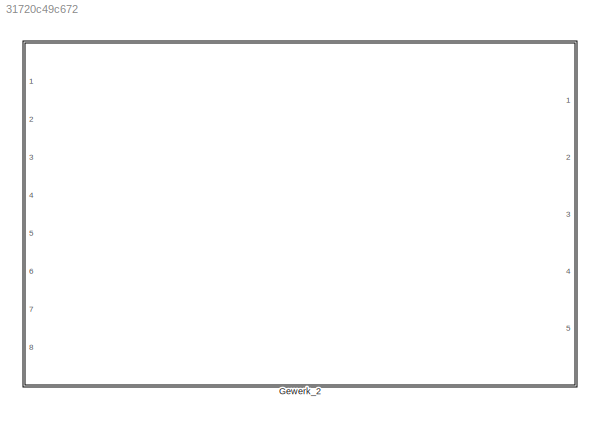
MODEL slx_31720c49c672
KIND model
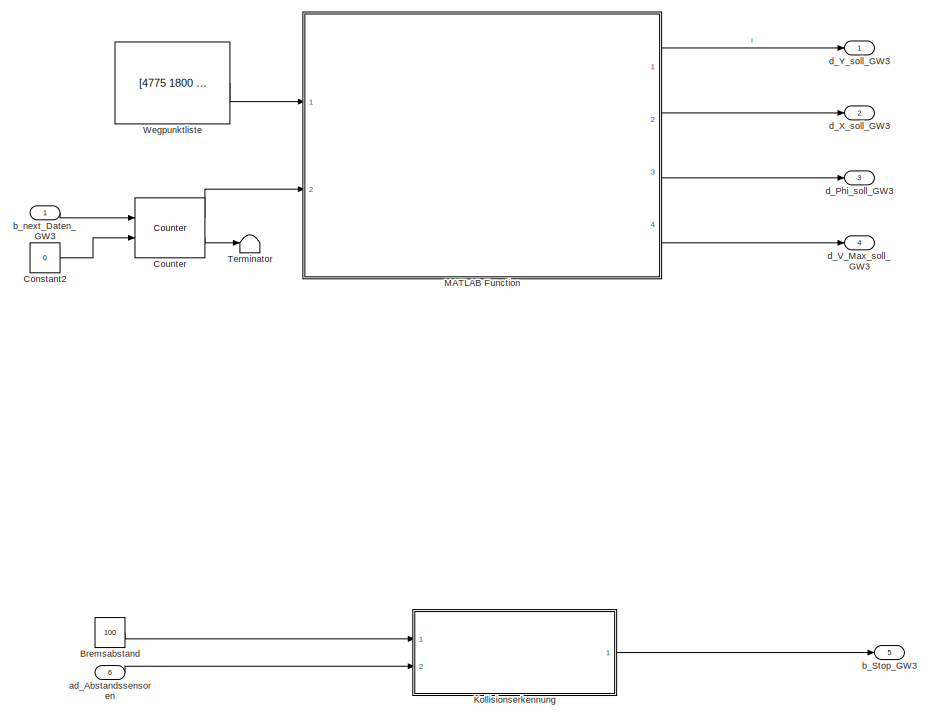
[diagram: Gewerk_2 - part 1/2, right side, full height]
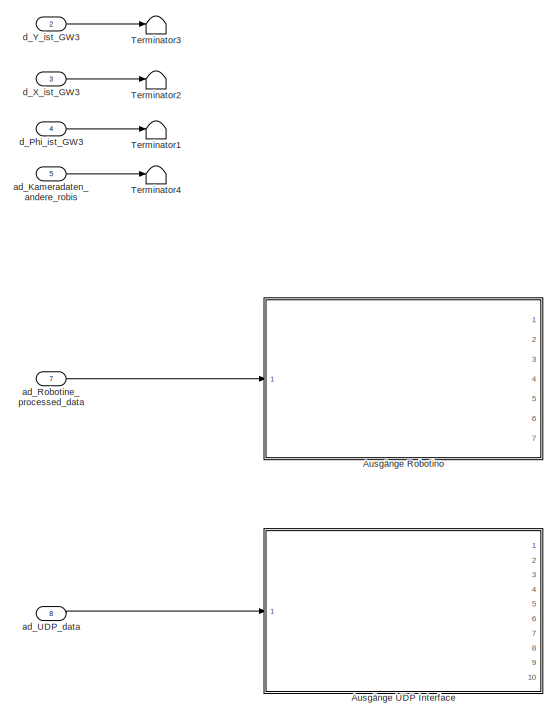
[diagram: Gewerk_2 - part 2/2, left side, full height]
BLOCK [SubSystem] Gewerk_2
  Ports = [8, 5]
  RequestExecContextInheritance = off
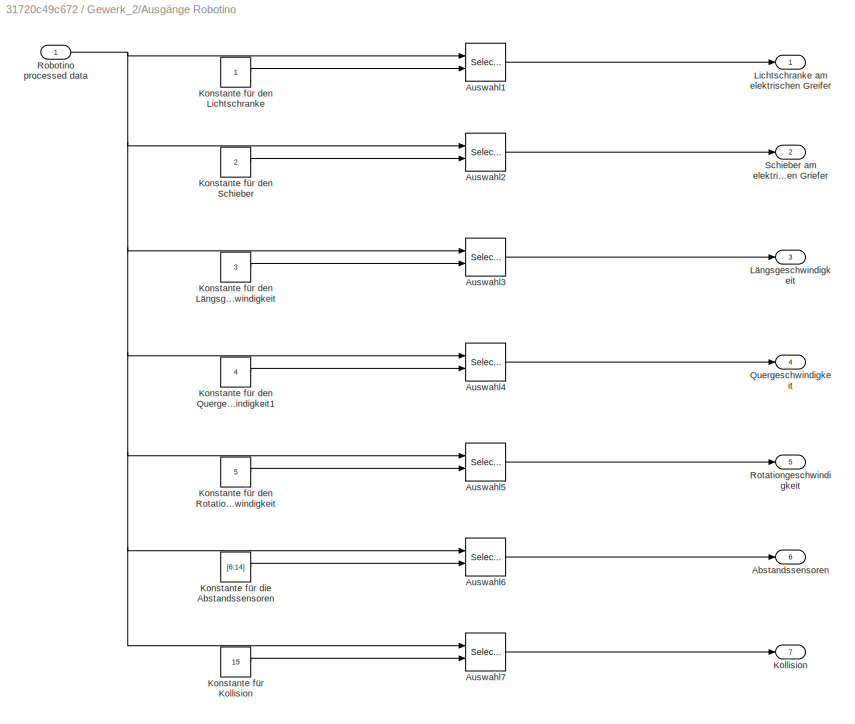
BLOCK [SubSystem] Gewerk_2/Ausgänge Robotino
  Ports = [1, 7]
  RequestExecContextInheritance = off
BLOCK [Outport] Gewerk_2/Ausgänge Robotino/Abstandssensoren
  IconDisplay = Port number
  Port = 6
BLOCK [Selector] Gewerk_2/Ausgänge Robotino/Auswahl1
  IndexOptions = Index vector (port)
  Indices = [1 3]
  InputPortWidth = 15
  Ports = [2, 1]
BLOCK [Selector] Gewerk_2/Ausgänge Robotino/Auswahl2
  IndexOptions = Index vector (port)
  Indices = [1 3]
  InputPortWidth = 15
  Ports = [2, 1]
BLOCK [Selector] Gewerk_2/Ausgänge Robotino/Auswahl3
  IndexOptions = Index vector (port)
  Indices = [1 3]
  InputPortWidth = 15
  Ports = [2, 1]
BLOCK [Selector] Gewerk_2/Ausgänge Robotino/Auswahl4
  IndexOptions = Index vector (port)
  Indices = [1 3]
  InputPortWidth = 15
  Ports = [2, 1]
BLOCK [Selector] Gewerk_2/Ausgänge Robotino/Auswahl5
  IndexOptions = Index vector (port)
  Indices = [1 3]
  InputPortWidth = 15
  Ports = [2, 1]
BLOCK [Selector] Gewerk_2/Ausgänge Robotino/Auswahl6
  IndexOptions = Index vector (port)
  Indices = [1 3]
  InputPortWidth = 15
  Ports = [2, 1]
BLOCK [Selector] Gewerk_2/Ausgänge Robotino/Auswahl7
  IndexOptions = Index vector (port)
  Indices = [1 3]
  InputPortWidth = 15
  Ports = [2, 1]
BLOCK [Outport] Gewerk_2/Ausgänge Robotino/Kollision
  IconDisplay = Port number
  Port = 7
BLOCK [Constant] Gewerk_2/Ausgänge Robotino/Konstante für Kollision 
  Value = 15
BLOCK [Constant] Gewerk_2/Ausgänge Robotino/Konstante für den Lichtschranke
BLOCK [Constant] Gewerk_2/Ausgänge Robotino/Konstante für den Längsgeschwindigkeit
  Value = 3
BLOCK [Constant] Gewerk_2/Ausgänge Robotino/Konstante für den Quergeschwindigkeit1
  Value = 4
BLOCK [Constant] Gewerk_2/Ausgänge Robotino/Konstante für den Rotationegeschwindigkeit
  Value = 5
BLOCK [Constant] Gewerk_2/Ausgänge Robotino/Konstante für den Schieber
  Value = 2
BLOCK [Constant] Gewerk_2/Ausgänge Robotino/Konstante für die Abstandssensoren
  Value = [6:14]
BLOCK [Outport] Gewerk_2/Ausgänge Robotino/Lichtschranke am elektrischen Greifer
  IconDisplay = Port number
BLOCK [Outport] Gewerk_2/Ausgänge Robotino/Längsgeschwindigkeit 
  IconDisplay = Port number
  Port = 3
BLOCK [Outport] Gewerk_2/Ausgänge Robotino/Quergeschwindigkeit
  IconDisplay = Port number
  Port = 4
BLOCK [Inport] Gewerk_2/Ausgänge Robotino/Robotino processed data
  IconDisplay = Port number
BLOCK [Outport] Gewerk_2/Ausgänge Robotino/Rotationgeschwindigkeit 
  IconDisplay = Port number
  Port = 5
BLOCK [Outport] Gewerk_2/Ausgänge Robotino/Schieber am elektrischen Griefer 
  IconDisplay = Port number
  Port = 2
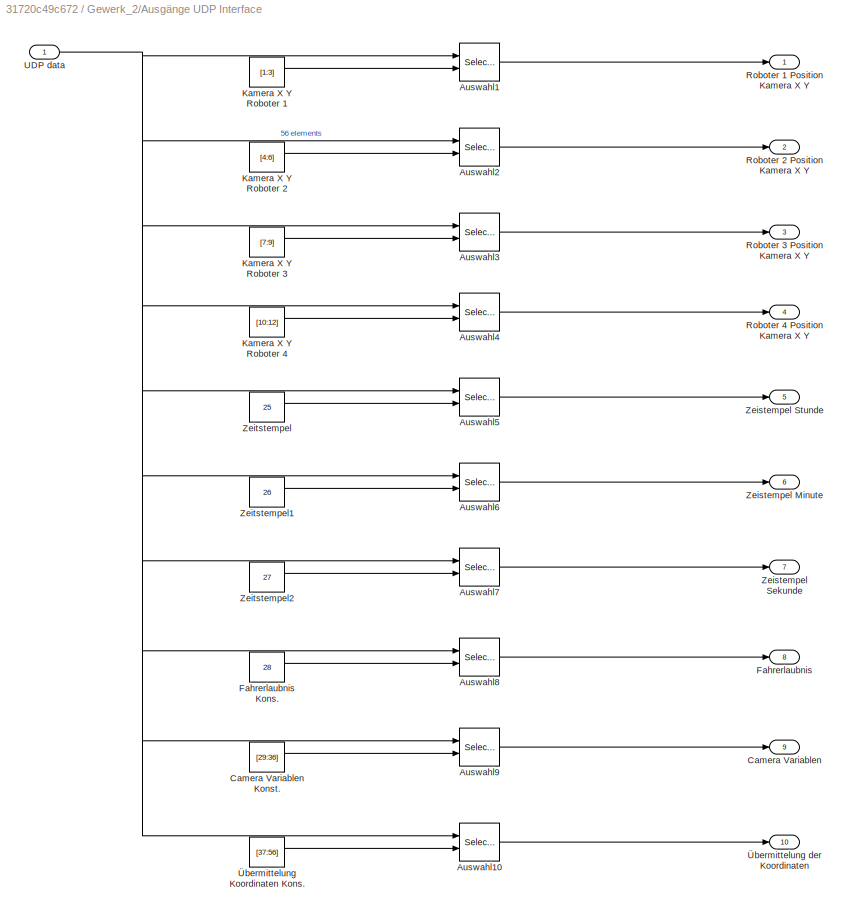
BLOCK [SubSystem] Gewerk_2/Ausgänge UDP Interface
  Ports = [1, 10]
  RequestExecContextInheritance = off
BLOCK [Selector] Gewerk_2/Ausgänge UDP Interface/Auswahl1
  IndexOptions = Index vector (port)
  Indices = [1 3]
  InputPortWidth = 15
  Ports = [2, 1]
BLOCK [Selector] Gewerk_2/Ausgänge UDP Interface/Auswahl10
  IndexOptions = Index vector (port)
  Indices = [1 3]
  InputPortWidth = 15
  Ports = [2, 1]
BLOCK [Selector] Gewerk_2/Ausgänge UDP Interface/Auswahl2
  IndexOptions = Index vector (port)
  Indices = [1 3]
  InputPortWidth = 15
  Ports = [2, 1]
BLOCK [Selector] Gewerk_2/Ausgänge UDP Interface/Auswahl3
  IndexOptions = Index vector (port)
  Indices = [1 3]
  InputPortWidth = 15
  Ports = [2, 1]
BLOCK [Selector] Gewerk_2/Ausgänge UDP Interface/Auswahl4
  IndexOptions = Index vector (port)
  Indices = [1 3]
  InputPortWidth = 15
  Ports = [2, 1]
BLOCK [Selector] Gewerk_2/Ausgänge UDP Interface/Auswahl5
  IndexOptions = Index vector (port)
  Indices = [1 3]
  InputPortWidth = 15
  Ports = [2, 1]
BLOCK [Selector] Gewerk_2/Ausgänge UDP Interface/Auswahl6
  IndexOptions = Index vector (port)
  Indices = [1 3]
  InputPortWidth = 15
  Ports = [2, 1]
BLOCK [Selector] Gewerk_2/Ausgänge UDP Interface/Auswahl7
  IndexOptions = Index vector (port)
  Indices = [1 3]
  InputPortWidth = 15
  Ports = [2, 1]
BLOCK [Selector] Gewerk_2/Ausgänge UDP Interface/Auswahl8
  IndexOptions = Index vector (port)
  Indices = [1 3]
  InputPortWidth = 15
  Ports = [2, 1]
BLOCK [Selector] Gewerk_2/Ausgänge UDP Interface/Auswahl9
  IndexOptions = Index vector (port)
  Indices = [1 3]
  InputPortWidth = 15
  Ports = [2, 1]
BLOCK [Outport] Gewerk_2/Ausgänge UDP Interface/Camera Variablen
  IconDisplay = Port number
  Port = 9
BLOCK [Constant] Gewerk_2/Ausgänge UDP Interface/Camera Variablen Konst.
  Value = [29:36]
BLOCK [Outport] Gewerk_2/Ausgänge UDP Interface/Fahrerlaubnis
  IconDisplay = Port number
  Port = 8
BLOCK [Constant] Gewerk_2/Ausgänge UDP Interface/Fahrerlaubnis Kons.
  Value = 28
BLOCK [Constant] Gewerk_2/Ausgänge UDP Interface/Kamera X Y Roboter 1
  Value = [1:3]
BLOCK [Constant] Gewerk_2/Ausgänge UDP Interface/Kamera X Y Roboter 2
  Value = [4:6]
BLOCK [Constant] Gewerk_2/Ausgänge UDP Interface/Kamera X Y Roboter 3
  Value = [7:9]
BLOCK [Constant] Gewerk_2/Ausgänge UDP Interface/Kamera X Y Roboter 4
  Value = [10:12]
BLOCK [Outport] Gewerk_2/Ausgänge UDP Interface/Roboter 1 Position Kamera X Y
  IconDisplay = Port number
BLOCK [Outport] Gewerk_2/Ausgänge UDP Interface/Roboter 2 Position Kamera X Y
  IconDisplay = Port number
  Port = 2
BLOCK [Outport] Gewerk_2/Ausgänge UDP Interface/Roboter 3 Position Kamera X Y
  IconDisplay = Port number
  Port = 3
BLOCK [Outport] Gewerk_2/Ausgänge UDP Interface/Roboter 4 Position Kamera X Y
  IconDisplay = Port number
  Port = 4
BLOCK [Inport] Gewerk_2/Ausgänge UDP Interface/UDP data
  IconDisplay = Port number
BLOCK [Outport] Gewerk_2/Ausgänge UDP Interface/Zeistempel Minute
  IconDisplay = Port number
  Port = 6
BLOCK [Outport] Gewerk_2/Ausgänge UDP Interface/Zeistempel Sekunde
  IconDisplay = Port number
  Port = 7
BLOCK [Outport] Gewerk_2/Ausgänge UDP Interface/Zeistempel Stunde
  IconDisplay = Port number
  Port = 5
BLOCK [Constant] Gewerk_2/Ausgänge UDP Interface/Zeitstempel
  Value = 25
BLOCK [Constant] Gewerk_2/Ausgänge UDP Interface/Zeitstempel1
  Value = 26
BLOCK [Constant] Gewerk_2/Ausgänge UDP Interface/Zeitstempel2
  Value = 27
BLOCK [Constant] Gewerk_2/Ausgänge UDP Interface/Übermittelung Koordinaten Kons.
  Value = [37:56]
BLOCK [Outport] Gewerk_2/Ausgänge UDP Interface/Übermittelung der Koordinaten
  IconDisplay = Port number
  Port = 10
BLOCK [Constant] Gewerk_2/Bremsabstand
  OutDataTypeStr = double
  Value = 100
BLOCK [Constant] Gewerk_2/Constant2
  Value = 0
BLOCK [Reference] Gewerk_2/Counter  REF=dspswit3/Counter
  CntDtype = int32
  CountEvent = Rising edge
  CounterSize = User defined
  Direction = Up
  HitDtype = Logical
  HitValue = 16
  InitialCount = 0
  MaxCount = 16
  Output = Count and Hit
  Ports = [2, 2]
  ResetInput = on
  SamplesPerFrame = 1
  SourceBlock = dspswit3/Counter
  SourceType = Counter
  Ts = 1
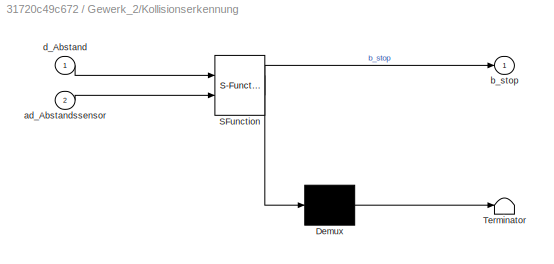
BLOCK [SubSystem] Gewerk_2/Kollisionserkennung
  ErrorFcn = Stateflow.Translate.translate
  PermitHierarchicalResolution = ExplicitOnly
  Ports = [2, 1]
  RequestExecContextInheritance = off
  SFBlockType = MATLAB Function
  TreatAsAtomicUnit = on
BLOCK [Demux] Gewerk_2/Kollisionserkennung/ Demux 
  Outputs = 1
  Ports = [1, 1]
BLOCK [S-Function] Gewerk_2/Kollisionserkennung/ SFunction 
  EnableBusSupport = on
  FunctionName = sf_sfun
  PortCounts = [2 2]
  Ports = [2, 2]
  Tag = Stateflow S-Function Gewerk_2_v0_2 1
BLOCK [Terminator] Gewerk_2/Kollisionserkennung/ Terminator 
BLOCK [Inport] Gewerk_2/Kollisionserkennung/ad_Abstandssensor
  IconDisplay = Port number
  Port = 2
BLOCK [Outport] Gewerk_2/Kollisionserkennung/b_stop
  IconDisplay = Port number
BLOCK [Inport] Gewerk_2/Kollisionserkennung/d_Abstand
  IconDisplay = Port number
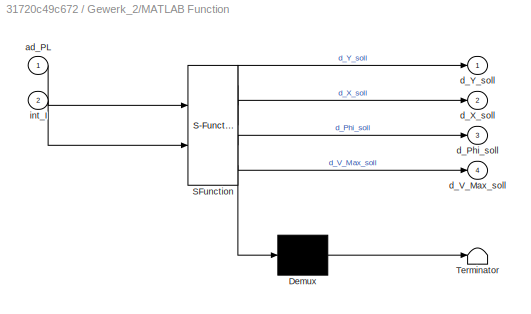
BLOCK [SubSystem] Gewerk_2/MATLAB Function
  ErrorFcn = Stateflow.Translate.translate
  PermitHierarchicalResolution = ExplicitOnly
  Ports = [2, 4]
  RequestExecContextInheritance = off
  SFBlockType = MATLAB Function
  TreatAsAtomicUnit = on
BLOCK [Demux] Gewerk_2/MATLAB Function/ Demux 
  Outputs = 1
  Ports = [1, 1]
BLOCK [S-Function] Gewerk_2/MATLAB Function/ SFunction 
  EnableBusSupport = on
  FunctionName = sf_sfun
  PortCounts = [2 5]
  Ports = [2, 5]
  Tag = Stateflow S-Function Gewerk_2_v0_2 2
BLOCK [Terminator] Gewerk_2/MATLAB Function/ Terminator 
BLOCK [Inport] Gewerk_2/MATLAB Function/ad_PL
  IconDisplay = Port number
BLOCK [Outport] Gewerk_2/MATLAB Function/d_Phi_soll
  IconDisplay = Port number
  Port = 3
BLOCK [Outport] Gewerk_2/MATLAB Function/d_V_Max_soll
  IconDisplay = Port number
  Port = 4
BLOCK [Outport] Gewerk_2/MATLAB Function/d_X_soll
  IconDisplay = Port number
  Port = 2
BLOCK [Outport] Gewerk_2/MATLAB Function/d_Y_soll
  IconDisplay = Port number
BLOCK [Inport] Gewerk_2/MATLAB Function/int_I
  IconDisplay = Port number
  Port = 2
BLOCK [Terminator] Gewerk_2/Terminator
BLOCK [Terminator] Gewerk_2/Terminator1
BLOCK [Terminator] Gewerk_2/Terminator2
BLOCK [Terminator] Gewerk_2/Terminator3
BLOCK [Terminator] Gewerk_2/Terminator4
BLOCK [Constant] Gewerk_2/Wegpunktliste
  OutDataTypeStr = double
  Value = [4775 1800 180 300 ; 3745 1800 180 300; 2540 2100 180 300; 2160 2100 180 300; 1678 1894 180 300; 1373 1846 180 300; 1155 1627 180 300; 1106 1321 180 300; 1246 1046 180 300; 1522 906 180 300; 1827 954 180 300; 2300 954 180 300; 2800 1500 180 300; 3300 1000 180 300; 3800 1500 180 300; 4300 1000 180 300; 4800 1500 180 300 ]
BLOCK [Inport] Gewerk_2/ad_Abstandssensoren
  IconDisplay = Port number
  OutDataTypeStr = double
  Port = 6
  PortDimensions = 9
  VarSizeSig = No
BLOCK [Inport] Gewerk_2/ad_Kameradaten_andere_robis
  IconDisplay = Port number
  OutDataTypeStr = double
  Port = 5
BLOCK [Inport] Gewerk_2/ad_Robotine_processed_data
  IconDisplay = Port number
  OutDataTypeStr = double
  Port = 7
BLOCK [Inport] Gewerk_2/ad_UDP_data
  IconDisplay = Port number
  OutDataTypeStr = double
  Port = 8
BLOCK [Outport] Gewerk_2/b_Stop_GW3
  IconDisplay = Port number
  OutDataTypeStr = boolean
  Port = 5
BLOCK [Inport] Gewerk_2/b_next_Daten_GW3
  IconDisplay = Port number
  OutDataTypeStr = boolean
BLOCK [Inport] Gewerk_2/d_Phi_ist_GW3
  IconDisplay = Port number
  OutDataTypeStr = double
  Port = 4
BLOCK [Outport] Gewerk_2/d_Phi_soll_GW3
  IconDisplay = Port number
  OutDataTypeStr = double
  Port = 3
BLOCK [Outport] Gewerk_2/d_V_Max_soll_GW3
  IconDisplay = Port number
  OutDataTypeStr = double
  Port = 4
BLOCK [Inport] Gewerk_2/d_X_ist_GW3
  IconDisplay = Port number
  OutDataTypeStr = double
  Port = 3
BLOCK [Outport] Gewerk_2/d_X_soll_GW3
  IconDisplay = Port number
  OutDataTypeStr = double
  Port = 2
BLOCK [Inport] Gewerk_2/d_Y_ist_GW3
  IconDisplay = Port number
  OutDataTypeStr = double
  Port = 2
BLOCK [Outport] Gewerk_2/d_Y_soll_GW3
  IconDisplay = Port number
  OutDataTypeStr = double
LINE Gewerk_2/Ausgänge Robotino/Auswahl1:1 -> Gewerk_2/Ausgänge Robotino/Lichtschranke am elektrischen Greifer:1
LINE Gewerk_2/Ausgänge Robotino/Auswahl2:1 -> Gewerk_2/Ausgänge Robotino/Schieber am elektrischen Griefer :1
LINE Gewerk_2/Ausgänge Robotino/Auswahl3:1 -> Gewerk_2/Ausgänge Robotino/Längsgeschwindigkeit :1
LINE Gewerk_2/Ausgänge Robotino/Auswahl4:1 -> Gewerk_2/Ausgänge Robotino/Quergeschwindigkeit:1
LINE Gewerk_2/Ausgänge Robotino/Auswahl5:1 -> Gewerk_2/Ausgänge Robotino/Rotationgeschwindigkeit :1
LINE Gewerk_2/Ausgänge Robotino/Auswahl6:1 -> Gewerk_2/Ausgänge Robotino/Abstandssensoren:1
LINE Gewerk_2/Ausgänge Robotino/Auswahl7:1 -> Gewerk_2/Ausgänge Robotino/Kollision:1
LINE Gewerk_2/Ausgänge Robotino/Konstante für Kollision :1 -> Gewerk_2/Ausgänge Robotino/Auswahl7:2
LINE Gewerk_2/Ausgänge Robotino/Konstante für den Lichtschranke:1 -> Gewerk_2/Ausgänge Robotino/Auswahl1:2
LINE Gewerk_2/Ausgänge Robotino/Konstante für den Längsgeschwindigkeit:1 -> Gewerk_2/Ausgänge Robotino/Auswahl3:2
LINE Gewerk_2/Ausgänge Robotino/Konstante für den Quergeschwindigkeit1:1 -> Gewerk_2/Ausgänge Robotino/Auswahl4:2
LINE Gewerk_2/Ausgänge Robotino/Konstante für den Rotationegeschwindigkeit:1 -> Gewerk_2/Ausgänge Robotino/Auswahl5:2
LINE Gewerk_2/Ausgänge Robotino/Konstante für den Schieber:1 -> Gewerk_2/Ausgänge Robotino/Auswahl2:2
LINE Gewerk_2/Ausgänge Robotino/Konstante für die Abstandssensoren:1 -> Gewerk_2/Ausgänge Robotino/Auswahl6:2
NET Gewerk_2/Ausgänge Robotino/Robotino processed data:1 -> Gewerk_2/Ausgänge Robotino/Auswahl1:1, Gewerk_2/Ausgänge Robotino/Auswahl2:1, Gewerk_2/Ausgänge Robotino/Auswahl3:1, Gewerk_2/Ausgänge Robotino/Auswahl4:1, Gewerk_2/Ausgänge Robotino/Auswahl5:1, Gewerk_2/Ausgänge Robotino/Auswahl6:1, Gewerk_2/Ausgänge Robotino/Auswahl7:1
LINE Gewerk_2/Ausgänge UDP Interface/Auswahl10:1 -> Gewerk_2/Ausgänge UDP Interface/Übermittelung der Koordinaten:1
LINE Gewerk_2/Ausgänge UDP Interface/Auswahl1:1 -> Gewerk_2/Ausgänge UDP Interface/Roboter 1 Position Kamera X Y:1
LINE Gewerk_2/Ausgänge UDP Interface/Auswahl2:1 -> Gewerk_2/Ausgänge UDP Interface/Roboter 2 Position Kamera X Y:1
LINE Gewerk_2/Ausgänge UDP Interface/Auswahl3:1 -> Gewerk_2/Ausgänge UDP Interface/Roboter 3 Position Kamera X Y:1
LINE Gewerk_2/Ausgänge UDP Interface/Auswahl4:1 -> Gewerk_2/Ausgänge UDP Interface/Roboter 4 Position Kamera X Y:1
LINE Gewerk_2/Ausgänge UDP Interface/Auswahl5:1 -> Gewerk_2/Ausgänge UDP Interface/Zeistempel Stunde:1
LINE Gewerk_2/Ausgänge UDP Interface/Auswahl6:1 -> Gewerk_2/Ausgänge UDP Interface/Zeistempel Minute:1
LINE Gewerk_2/Ausgänge UDP Interface/Auswahl7:1 -> Gewerk_2/Ausgänge UDP Interface/Zeistempel Sekunde:1
LINE Gewerk_2/Ausgänge UDP Interface/Auswahl8:1 -> Gewerk_2/Ausgänge UDP Interface/Fahrerlaubnis:1
LINE Gewerk_2/Ausgänge UDP Interface/Auswahl9:1 -> Gewerk_2/Ausgänge UDP Interface/Camera Variablen:1
LINE Gewerk_2/Ausgänge UDP Interface/Camera Variablen Konst.:1 -> Gewerk_2/Ausgänge UDP Interface/Auswahl9:2
LINE Gewerk_2/Ausgänge UDP Interface/Fahrerlaubnis Kons.:1 -> Gewerk_2/Ausgänge UDP Interface/Auswahl8:2
LINE Gewerk_2/Ausgänge UDP Interface/Kamera X Y Roboter 1:1 -> Gewerk_2/Ausgänge UDP Interface/Auswahl1:2
LINE Gewerk_2/Ausgänge UDP Interface/Kamera X Y Roboter 2:1 -> Gewerk_2/Ausgänge UDP Interface/Auswahl2:2
LINE Gewerk_2/Ausgänge UDP Interface/Kamera X Y Roboter 3:1 -> Gewerk_2/Ausgänge UDP Interface/Auswahl3:2
LINE Gewerk_2/Ausgänge UDP Interface/Kamera X Y Roboter 4:1 -> Gewerk_2/Ausgänge UDP Interface/Auswahl4:2
NET Gewerk_2/Ausgänge UDP Interface/UDP data:1 -> Gewerk_2/Ausgänge UDP Interface/Auswahl10:1, Gewerk_2/Ausgänge UDP Interface/Auswahl1:1, Gewerk_2/Ausgänge UDP Interface/Auswahl2:1, Gewerk_2/Ausgänge UDP Interface/Auswahl3:1, Gewerk_2/Ausgänge UDP Interface/Auswahl4:1, Gewerk_2/Ausgänge UDP Interface/Auswahl5:1, Gewerk_2/Ausgänge UDP Interface/Auswahl6:1, Gewerk_2/Ausgänge UDP Interface/Auswahl7:1, Gewerk_2/Ausgänge UDP Interface/Auswahl8:1, Gewerk_2/Ausgänge UDP Interface/Auswahl9:1
LINE Gewerk_2/Ausgänge UDP Interface/Zeitstempel1:1 -> Gewerk_2/Ausgänge UDP Interface/Auswahl6:2
LINE Gewerk_2/Ausgänge UDP Interface/Zeitstempel2:1 -> Gewerk_2/Ausgänge UDP Interface/Auswahl7:2
LINE Gewerk_2/Ausgänge UDP Interface/Zeitstempel:1 -> Gewerk_2/Ausgänge UDP Interface/Auswahl5:2
LINE Gewerk_2/Ausgänge UDP Interface/Übermittelung Koordinaten Kons.:1 -> Gewerk_2/Ausgänge UDP Interface/Auswahl10:2
LINE Gewerk_2/Bremsabstand:1 -> Gewerk_2/Kollisionserkennung:1
LINE Gewerk_2/Constant2:1 -> Gewerk_2/Counter:2
LINE Gewerk_2/Counter:1 -> Gewerk_2/MATLAB Function:2
LINE Gewerk_2/Counter:2 -> Gewerk_2/Terminator:1
LINE Gewerk_2/Kollisionserkennung:1 -> Gewerk_2/b_Stop_GW3:1
LINE Gewerk_2/MATLAB Function:1 -> Gewerk_2/d_Y_soll_GW3:1
LINE Gewerk_2/MATLAB Function:2 -> Gewerk_2/d_X_soll_GW3:1
LINE Gewerk_2/MATLAB Function:3 -> Gewerk_2/d_Phi_soll_GW3:1
LINE Gewerk_2/MATLAB Function:4 -> Gewerk_2/d_V_Max_soll_GW3:1
LINE Gewerk_2/Wegpunktliste:1 -> Gewerk_2/MATLAB Function:1
LINE Gewerk_2/ad_Abstandssensoren:1 -> Gewerk_2/Kollisionserkennung:2
LINE Gewerk_2/ad_Kameradaten_andere_robis:1 -> Gewerk_2/Terminator4:1
LINE Gewerk_2/ad_Robotine_processed_data:1 -> Gewerk_2/Ausgänge Robotino:1
LINE Gewerk_2/ad_UDP_data:1 -> Gewerk_2/Ausgänge UDP Interface:1
LINE Gewerk_2/b_next_Daten_GW3:1 -> Gewerk_2/Counter:1
LINE Gewerk_2/d_Phi_ist_GW3:1 -> Gewerk_2/Terminator1:1
LINE Gewerk_2/d_X_ist_GW3:1 -> Gewerk_2/Terminator2:1
LINE Gewerk_2/d_Y_ist_GW3:1 -> Gewerk_2/Terminator3:1
note: NET lines group one-source signal fan-out (src -> all destinations, sorted); 1:1 wires keep LINE
